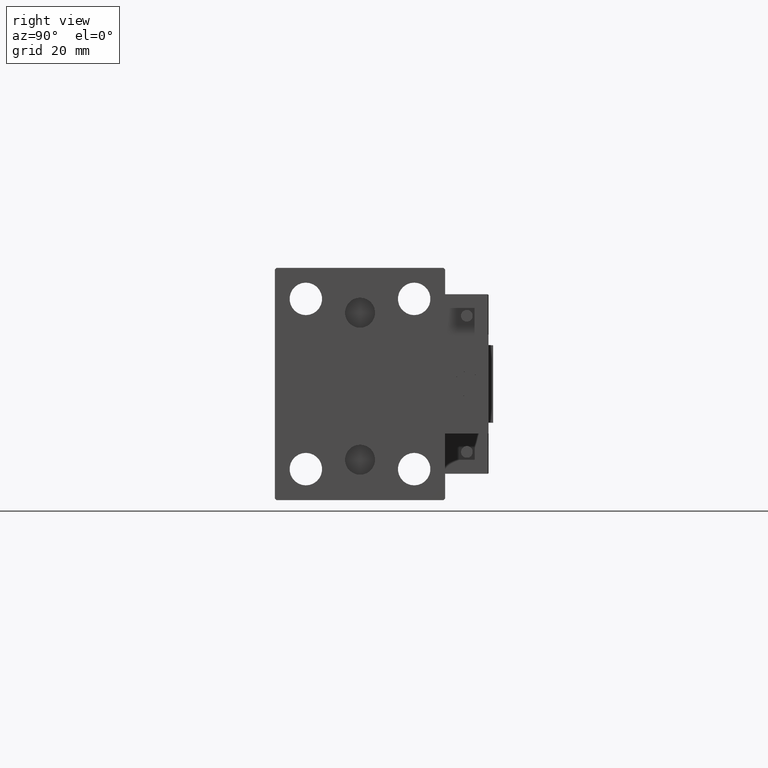
[diagram: clean part render]
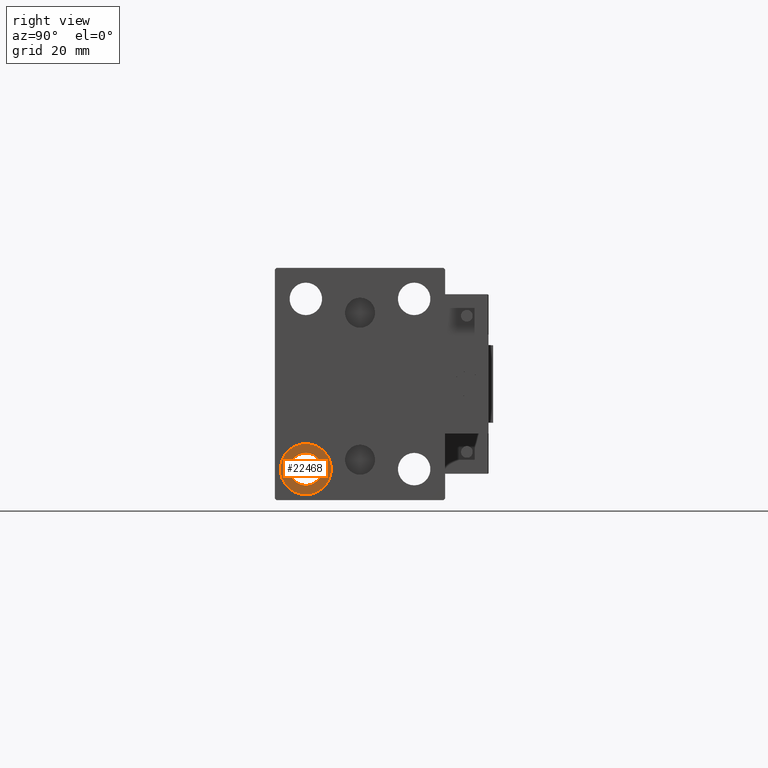
[diagram: same view with one face highlighted and labeled with its STEP entity id]
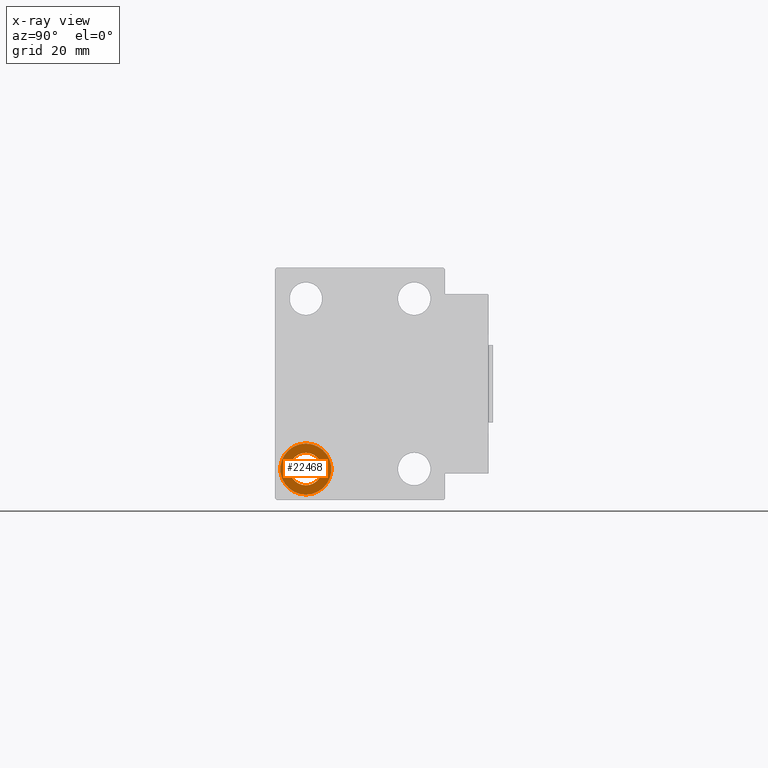
[diagram: x-ray of the same camera — body ghosted, the highlighted face saturated]
A machine part, right view. The second image highlights one B-rep face of the part: STEP entity #22468.
The next image is the same camera in x-ray: the body ghosted, the highlighted face saturated — about 0% of this face is hidden behind the body in this view.
In plain terms, the highlighted planar face has unit normal (1, 0, 0).
Its self-contained STEP definition (entity closure, byte-faithful):
#648 = FACE_OUTER_BOUND ( 'NONE', #20239, .T. ) ;
#3258 = AXIS2_PLACEMENT_3D ( 'NONE', #12186, #46006, #27866 ) ;
#3466 = EDGE_LOOP ( 'NONE', ( #7460, #6847 ) ) ;
#5795 = EDGE_CURVE ( 'NONE', #23963, #36059, #18264, .T. ) ;
#5967 = DIRECTION ( 'NONE',  ( -1.000000000000000000, -0.000000000000000000, -0.000000000000000000 ) ) ;
#6847 = ORIENTED_EDGE ( 'NONE', *, *, #29435, .T. ) ;
#7460 = ORIENTED_EDGE ( 'NONE', *, *, #5795, .T. ) ;
#8473 = DIRECTION ( 'NONE',  ( 1.000000000000000000, 0.000000000000000000, -0.000000000000000000 ) ) ;
#9266 = DIRECTION ( 'NONE',  ( 0.000000000000000000, 0.000000000000000000, -1.000000000000000000 ) ) ;
#10906 = ORIENTED_EDGE ( 'NONE', *, *, #42505, .F. ) ;
#11629 = AXIS2_PLACEMENT_3D ( 'NONE', #47002, #27863, #43233 ) ;
#12186 = CARTESIAN_POINT ( 'NONE',  ( 124.0000000000000142, -17.50000000000000355, -27.50000000000000355 ) ) ;
#14321 = VERTEX_POINT ( 'NONE', #39634 ) ;
#16203 = EDGE_CURVE ( 'NONE', #14321, #43558, #46702, .T. ) ;
#18264 = CIRCLE ( 'NONE', #43267, 5.249999999999997335 ) ;
#19313 = CARTESIAN_POINT ( 'NONE',  ( 124.0000000000000142, -17.50000000000000355, -19.25000000000000355 ) ) ;
#20239 = EDGE_LOOP ( 'NONE', ( #49778, #10906 ) ) ;
#21895 = CARTESIAN_POINT ( 'NONE',  ( 124.0000000000000142, -17.50000000000000355, -27.50000000000000355 ) ) ;
#22468 = ADVANCED_FACE ( 'NONE', ( #648, #42312 ), #35251, .T. ) ;
#23852 = DIRECTION ( 'NONE',  ( 0.000000000000000000, 0.000000000000000000, 1.000000000000000000 ) ) ;
#23963 = VERTEX_POINT ( 'NONE', #25825 ) ;
#25825 = CARTESIAN_POINT ( 'NONE',  ( 124.0000000000000142, -17.50000000000000355, -22.25000000000000355 ) ) ;
#26973 = CIRCLE ( 'NONE', #11629, 8.250000000000000000 ) ;
#27442 = CARTESIAN_POINT ( 'NONE',  ( 124.0000000000000142, 0.000000000000000000, 0.000000000000000000 ) ) ;
#27863 = DIRECTION ( 'NONE',  ( -1.000000000000000000, -0.000000000000000000, -0.000000000000000000 ) ) ;
#27866 = DIRECTION ( 'NONE',  ( 0.000000000000000000, 0.000000000000000000, -1.000000000000000000 ) ) ;
#29435 = EDGE_CURVE ( 'NONE', #36059, #23963, #47556, .T. ) ;
#35251 = PLANE ( 'NONE',  #42064 ) ;
#36059 = VERTEX_POINT ( 'NONE', #40277 ) ;
#38732 = DIRECTION ( 'NONE',  ( -1.000000000000000000, -0.000000000000000000, -0.000000000000000000 ) ) ;
#39634 = CARTESIAN_POINT ( 'NONE',  ( 124.0000000000000142, -17.50000000000000355, -35.75000000000000711 ) ) ;
#40277 = CARTESIAN_POINT ( 'NONE',  ( 124.0000000000000142, -17.50000000000000355, -32.75000000000000000 ) ) ;
#42064 = AXIS2_PLACEMENT_3D ( 'NONE', #27442, #8473, #43063 ) ;
#42312 = FACE_BOUND ( 'NONE', #3466, .T. ) ;
#42505 = EDGE_CURVE ( 'NONE', #43558, #14321, #26973, .T. ) ;
#43063 = DIRECTION ( 'NONE',  ( 0.000000000000000000, 0.000000000000000000, 1.000000000000000000 ) ) ;
#43233 = DIRECTION ( 'NONE',  ( 0.000000000000000000, 0.000000000000000000, 1.000000000000000000 ) ) ;
#43267 = AXIS2_PLACEMENT_3D ( 'NONE', #21895, #5967, #9266 ) ;
#43558 = VERTEX_POINT ( 'NONE', #19313 ) ;
#44288 = AXIS2_PLACEMENT_3D ( 'NONE', #46527, #38732, #23852 ) ;
#46006 = DIRECTION ( 'NONE',  ( -1.000000000000000000, -0.000000000000000000, -0.000000000000000000 ) ) ;
#46527 = CARTESIAN_POINT ( 'NONE',  ( 124.0000000000000142, -17.50000000000000355, -27.50000000000000355 ) ) ;
#46702 = CIRCLE ( 'NONE', #44288, 8.250000000000000000 ) ;
#47002 = CARTESIAN_POINT ( 'NONE',  ( 124.0000000000000142, -17.50000000000000355, -27.50000000000000355 ) ) ;
#47556 = CIRCLE ( 'NONE', #3258, 5.249999999999997335 ) ;
#49778 = ORIENTED_EDGE ( 'NONE', *, *, #16203, .F. ) ;